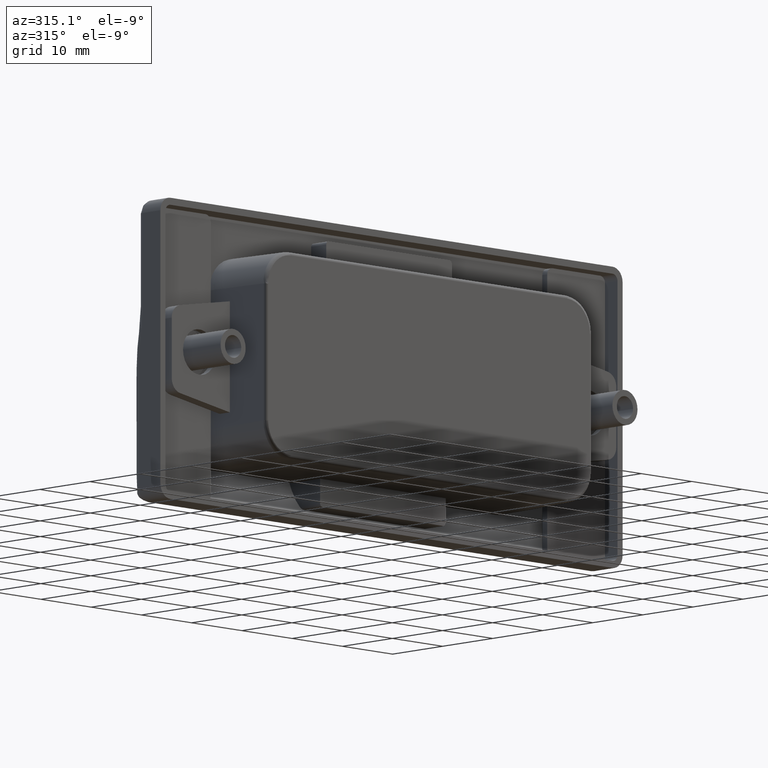
[diagram: clean part render]
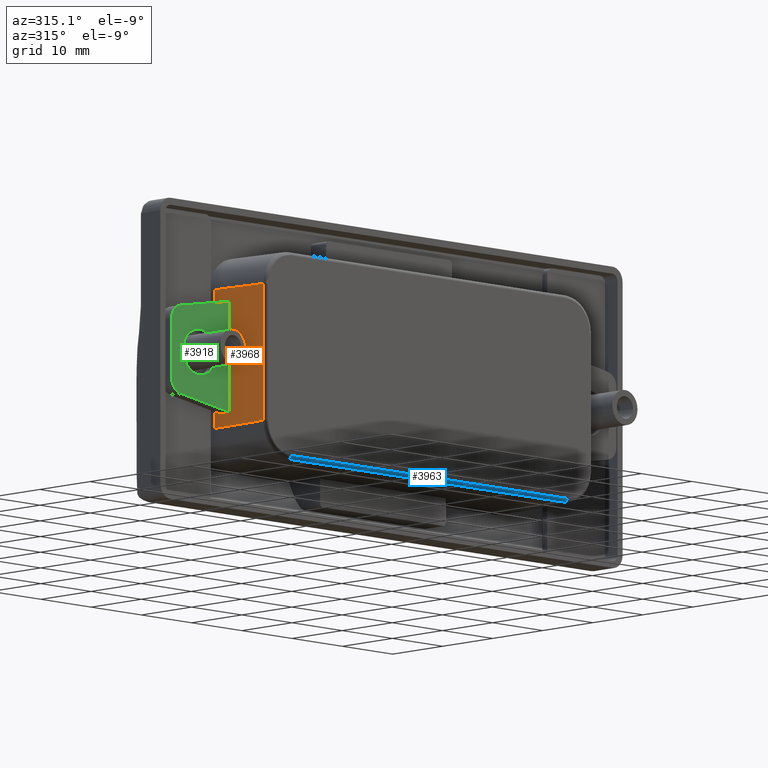
[diagram: same view with three faces highlighted in distinct colors, each labeled with its STEP entity id]
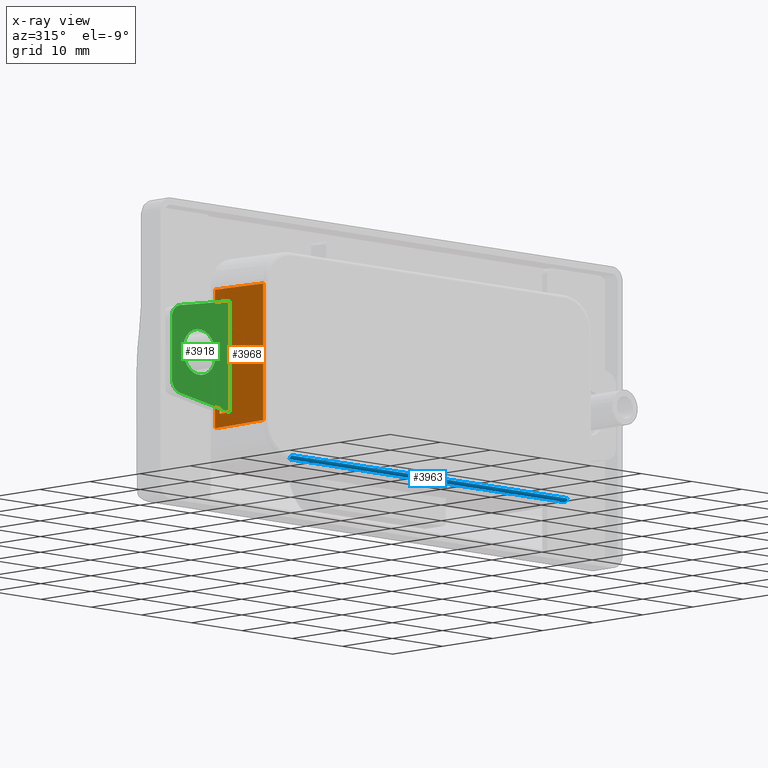
[diagram: x-ray of the same camera — body ghosted, the three highlighted faces saturated]
A machine part, auxiliary view with three faces highlighted in distinct colors.
The next image is the same camera in x-ray (body ghosted, the three faces saturated) — at least one of them is partly hidden behind the body in this view.
Their STEP definitions:

[orange] entity #3968 — the highlighted planar face has unit normal (-0.9997, -0.025, 0).
#168=LINE('',#8065,#449);
#172=LINE('',#8073,#453);
#179=LINE('',#8095,#460);
#181=LINE('',#8098,#462);
#274=LINE('',#8515,#555);
#277=LINE('',#8565,#558);
#278=LINE('',#8567,#559);
#279=LINE('',#8568,#560);
#449=VECTOR('',#4998,2.00064225798728);
#453=VECTOR('',#5004,15.8583333333333);
#460=VECTOR('',#5027,15.8416666666667);
#462=VECTOR('',#5031,2.00064225798728);
#555=VECTOR('',#5282,19.5146251171326);
#558=VECTOR('',#5291,9.46654023745528);
#559=VECTOR('',#5292,19.798500702759);
#560=VECTOR('',#5293,9.46654023745537);
#669=PLANE('',#4338);
#704=FACE_BOUND('',#1246,.T.);
#986=FACE_OUTER_BOUND('',#1245,.T.);
#1245=EDGE_LOOP('',(#3437,#3438,#3439,#3440));
#1246=EDGE_LOOP('',(#3441,#3442,#3443,#3444));
#1798=VERTEX_POINT('',#8063);
#1799=VERTEX_POINT('',#8064);
#1802=VERTEX_POINT('',#8072);
#1809=VERTEX_POINT('',#8094);
#1914=VERTEX_POINT('',#8497);
#1916=VERTEX_POINT('',#8513);
#1918=VERTEX_POINT('',#8564);
#1919=VERTEX_POINT('',#8566);
#2284=EDGE_CURVE('',#1798,#1799,#168,.T.);
#2288=EDGE_CURVE('',#1802,#1798,#172,.T.);
#2299=EDGE_CURVE('',#1799,#1809,#179,.T.);
#2301=EDGE_CURVE('',#1809,#1802,#181,.T.);
#2443=EDGE_CURVE('',#1916,#1914,#274,.T.);
#2449=EDGE_CURVE('',#1918,#1916,#277,.T.);
#2450=EDGE_CURVE('',#1919,#1918,#278,.T.);
#2451=EDGE_CURVE('',#1914,#1919,#279,.T.);
#3437=ORIENTED_EDGE('',*,*,#2443,.F.);
#3438=ORIENTED_EDGE('',*,*,#2449,.F.);
#3439=ORIENTED_EDGE('',*,*,#2450,.F.);
#3440=ORIENTED_EDGE('',*,*,#2451,.F.);
#3441=ORIENTED_EDGE('',*,*,#2288,.T.);
#3442=ORIENTED_EDGE('',*,*,#2284,.T.);
#3443=ORIENTED_EDGE('',*,*,#2299,.T.);
#3444=ORIENTED_EDGE('',*,*,#2301,.T.);
#3968=ADVANCED_FACE('',(#986,#704),#669,.T.);
#4338=AXIS2_PLACEMENT_3D('',#8563,#5289,#5290);
#4998=DIRECTION('',(-0.024991974352427,0.999678974097085,0.00416532905873784));
#5004=DIRECTION('',(6.7220534694101E-18,-2.68882138776405E-16,-1.));
#5027=DIRECTION('',(1.3010426069826E-18,-5.20417042793042E-17,1.));
#5031=DIRECTION('',(0.024991974352427,-0.999678974097085,0.00416532905873726));
#5282=DIRECTION('',(-1.56980031526223E-35,6.27920126104893E-34,-1.));
#5289=DIRECTION('center_axis',(-0.999687646408123,-0.024992191160203,0.));
#5290=DIRECTION('ref_axis',(0.,0.,1.));
#5291=DIRECTION('',(0.0249893817686418,-0.999575270745728,-0.0149936290611859));
#5292=DIRECTION('',(1.12143739861127E-16,-4.48574959444509E-15,1.));
#5293=DIRECTION('',(-0.0249893817686431,0.999575270745728,-0.0149936290611856));
#8063=CARTESIAN_POINT('',(-32.675,-0.500000000000007,-7.92916666666667));
#8064=CARTESIAN_POINT('',(-32.725,1.49999999999999,-7.92083333333334));
#8065=CARTESIAN_POINT('',(-32.5872703298229,-4.00918680708573,-7.94378827836286));
#8072=CARTESIAN_POINT('',(-32.675,-0.500000000000002,7.92916666666667));
#8073=CARTESIAN_POINT('',(-32.675,-0.500000000000005,-0.875000000000001));
#8094=CARTESIAN_POINT('',(-32.725,1.49999999999999,7.92083333333334));
#8095=CARTESIAN_POINT('',(-32.725,1.49999999999999,-8.875));
#8098=CARTESIAN_POINT('',(-32.613269254125,-2.96922983500183,7.93945512431251));
#8497=CARTESIAN_POINT('',(-32.5121875976105,-7.0124960955801,-9.7573125585663));
#8513=CARTESIAN_POINT('',(-32.5121875976105,-7.0124960955801,9.7573125585663));
#8515=CARTESIAN_POINT('',(-32.5121875976105,-7.0124960955801,-4.875));
#8563=CARTESIAN_POINT('Origin',(-32.5,-7.5,-9.75));
#8564=CARTESIAN_POINT('',(-32.7487505856325,2.45002342529959,9.89925035137949));
#8565=CARTESIAN_POINT('',(-32.75,2.5,9.9));
#8566=CARTESIAN_POINT('',(-32.7487505856325,2.45002342529968,-9.89925035137949));
#8567=CARTESIAN_POINT('',(-32.7487505856325,2.45002342529968,-9.82499999999995));
#8568=CARTESIAN_POINT('',(-32.5,-7.5,-9.75));

[blue] entity #3963 — the highlighted cylindrical surface (edge-blend (fillet) strip) has radius 0.5 mm, axis along (-1, -0, 0).
#214=LINE('',#8202,#495);
#273=LINE('',#8465,#554);
#495=VECTOR('',#5132,55.0246250421804);
#554=VECTOR('',#5275,55.0246250421804);
#773=CYLINDRICAL_SURFACE('',#4331,0.5);
#981=FACE_OUTER_BOUND('',#1240,.T.);
#1240=EDGE_LOOP('',(#3417,#3418,#3419,#3420));
#1453=CIRCLE('',#4330,0.5);
#1454=CIRCLE('',#4332,0.5);
#1845=VERTEX_POINT('',#8199);
#1846=VERTEX_POINT('',#8201);
#1911=VERTEX_POINT('',#8448);
#1912=VERTEX_POINT('',#8463);
#2350=EDGE_CURVE('',#1846,#1845,#214,.T.);
#2434=EDGE_CURVE('',#1911,#1845,#1453,.T.);
#2437=EDGE_CURVE('',#1912,#1846,#1454,.T.);
#2438=EDGE_CURVE('',#1911,#1912,#273,.T.);
#3417=ORIENTED_EDGE('',*,*,#2437,.T.);
#3418=ORIENTED_EDGE('',*,*,#2350,.T.);
#3419=ORIENTED_EDGE('',*,*,#2434,.F.);
#3420=ORIENTED_EDGE('',*,*,#2438,.T.);
#3963=ADVANCED_FACE('',(#981),#773,.T.);
#4330=AXIS2_PLACEMENT_3D('',#8449,#5269,#5270);
#4331=AXIS2_PLACEMENT_3D('',#8462,#5271,#5272);
#4332=AXIS2_PLACEMENT_3D('',#8464,#5273,#5274);
#5132=DIRECTION('',(1.,1.92575203484177E-33,-1.60141373210161E-16));
#5269=DIRECTION('center_axis',(1.,0.,0.));
#5270=DIRECTION('ref_axis',(0.,-1.,0.));
#5271=DIRECTION('center_axis',(-1.,-1.92575203484177E-33,1.60141373210161E-16));
#5272=DIRECTION('ref_axis',(0.,-0.712389750342012,-0.701784043426214));
#5273=DIRECTION('center_axis',(1.,0.,-8.88278334152453E-15));
#5274=DIRECTION('ref_axis',(0.,-1.,0.));
#5275=DIRECTION('',(-1.,-1.92575203484177E-33,1.60141373210161E-16));
#8199=CARTESIAN_POINT('',(27.5123125210902,-7.00749915639236,-14.7573875126541));
#8201=CARTESIAN_POINT('',(-27.5123125210902,-7.00749915639236,-14.7573875126541));
#8202=CARTESIAN_POINT('',(13.75,-7.00749915639236,-14.7573875126541));
#8448=CARTESIAN_POINT('',(27.5123125210902,-7.5,-14.2574437531637));
#8449=CARTESIAN_POINT('Origin',(27.5123125210902,-7.,-14.2574437531637));
#8462=CARTESIAN_POINT('Origin',(13.75,-7.,-14.2574437531637));
#8463=CARTESIAN_POINT('',(-27.5123125210902,-7.5,-14.2574437531637));
#8464=CARTESIAN_POINT('Origin',(-27.5123125210902,-7.,-14.2574437531637));
#8465=CARTESIAN_POINT('',(13.75,-7.5,-14.2574437531637));

[green] entity #3918 — the highlighted planar face has unit normal (0, 1, -0).
#169=LINE('',#8067,#450);
#172=LINE('',#8073,#453);
#173=LINE('',#8075,#454);
#174=LINE('',#8079,#455);
#450=VECTOR('',#4999,10.0404085379343);
#453=VECTOR('',#5004,15.8583333333333);
#454=VECTOR('',#5005,10.0404085379343);
#455=VECTOR('',#5008,8.61149164646785);
#640=PLANE('',#4247);
#697=FACE_BOUND('',#1189,.T.);
#936=FACE_OUTER_BOUND('',#1188,.T.);
#1188=EDGE_LOOP('',(#3182,#3183,#3184,#3185,#3186,#3187));
#1189=EDGE_LOOP('',(#3188));
#1414=CIRCLE('',#4245,3.25);
#1415=CIRCLE('',#4248,2.);
#1416=CIRCLE('',#4249,2.);
#1797=VERTEX_POINT('',#8060);
#1798=VERTEX_POINT('',#8063);
#1800=VERTEX_POINT('',#8066);
#1802=VERTEX_POINT('',#8072);
#1803=VERTEX_POINT('',#8074);
#1804=VERTEX_POINT('',#8076);
#1805=VERTEX_POINT('',#8078);
#2283=EDGE_CURVE('',#1797,#1797,#1414,.T.);
#2285=EDGE_CURVE('',#1798,#1800,#169,.T.);
#2288=EDGE_CURVE('',#1802,#1798,#172,.T.);
#2289=EDGE_CURVE('',#1802,#1803,#173,.T.);
#2290=EDGE_CURVE('',#1803,#1804,#1415,.T.);
#2291=EDGE_CURVE('',#1804,#1805,#174,.T.);
#2292=EDGE_CURVE('',#1805,#1800,#1416,.T.);
#3182=ORIENTED_EDGE('',*,*,#2288,.F.);
#3183=ORIENTED_EDGE('',*,*,#2289,.T.);
#3184=ORIENTED_EDGE('',*,*,#2290,.T.);
#3185=ORIENTED_EDGE('',*,*,#2291,.T.);
#3186=ORIENTED_EDGE('',*,*,#2292,.T.);
#3187=ORIENTED_EDGE('',*,*,#2285,.F.);
#3188=ORIENTED_EDGE('',*,*,#2283,.T.);
#3918=ADVANCED_FACE('',(#936,#697),#640,.F.);
#4245=AXIS2_PLACEMENT_3D('',#8061,#4994,#4995);
#4247=AXIS2_PLACEMENT_3D('',#8071,#5002,#5003);
#4248=AXIS2_PLACEMENT_3D('',#8077,#5006,#5007);
#4249=AXIS2_PLACEMENT_3D('',#8080,#5009,#5010);
#4994=DIRECTION('center_axis',(5.68121938382404E-16,1.,-2.68882138776405E-16));
#4995=DIRECTION('ref_axis',(-1.,1.76363553390975E-16,9.26999420891279E-33));
#4999=DIRECTION('',(-0.986393923832144,5.93188508027266E-16,0.164398987305357));
#5002=DIRECTION('center_axis',(5.68121938382404E-16,1.,-2.68882138776405E-16));
#5003=DIRECTION('ref_axis',(0.,-2.66453525910038E-16,-1.));
#5004=DIRECTION('',(6.7220534694101E-18,-2.68882138776405E-16,-1.));
#5005=DIRECTION('',(-0.986393923832144,-1.82519540931466E-16,-0.164398987305357));
#5006=DIRECTION('center_axis',(-5.68121938382404E-16,-1.,2.68882138776405E-16));
#5007=DIRECTION('ref_axis',(-0.763019982472726,-3.63759485376531E-16,0.646374896130195));
#5008=DIRECTION('',(0.,3.9110129276568E-16,-1.));
#5009=DIRECTION('center_axis',(-5.68121938382404E-16,-1.,2.68882138776405E-16));
#5010=DIRECTION('ref_axis',(-0.763019982472726,-2.58466659898127E-30,-0.646374896130195));
#8060=CARTESIAN_POINT('',(-35.5,-0.500000000000008,-8.16309368191492E-16));
#8061=CARTESIAN_POINT('Origin',(-38.75,-0.500000000000007,-1.21430643318377E-15));
#8063=CARTESIAN_POINT('',(-32.675,-0.500000000000007,-7.92916666666667));
#8066=CARTESIAN_POINT('',(-42.5787979746108,-0.500000000000001,-6.27853367089821));
#8067=CARTESIAN_POINT('',(-32.25,-0.500000000000007,-8.));
#8071=CARTESIAN_POINT('Origin',(-32.25,-0.500000000000003,8.));
#8072=CARTESIAN_POINT('',(-32.675,-0.500000000000002,7.92916666666667));
#8073=CARTESIAN_POINT('',(-32.675,-0.500000000000005,-0.875000000000001));
#8074=CARTESIAN_POINT('',(-42.5787979746108,-0.500000000000004,6.27853367089821));
#8075=CARTESIAN_POINT('',(-32.25,-0.500000000000002,8.));
#8076=CARTESIAN_POINT('',(-44.25,-0.500000000000004,4.30574582323393));
#8077=CARTESIAN_POINT('Origin',(-42.25,-0.500000000000001,4.30574582323393));
#8078=CARTESIAN_POINT('',(-44.25,-0.5,-4.30574582323392));
#8079=CARTESIAN_POINT('',(-44.25,-0.500000000000004,6.));
#8080=CARTESIAN_POINT('Origin',(-42.25,-0.500000000000003,-4.30574582323392));